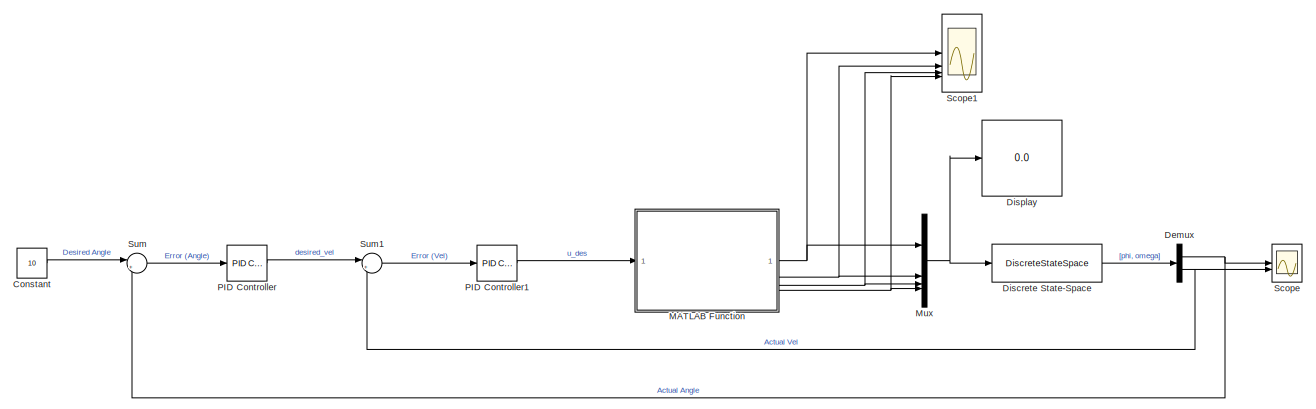
[diagram: root canvas - part 1/2, full width, top band]
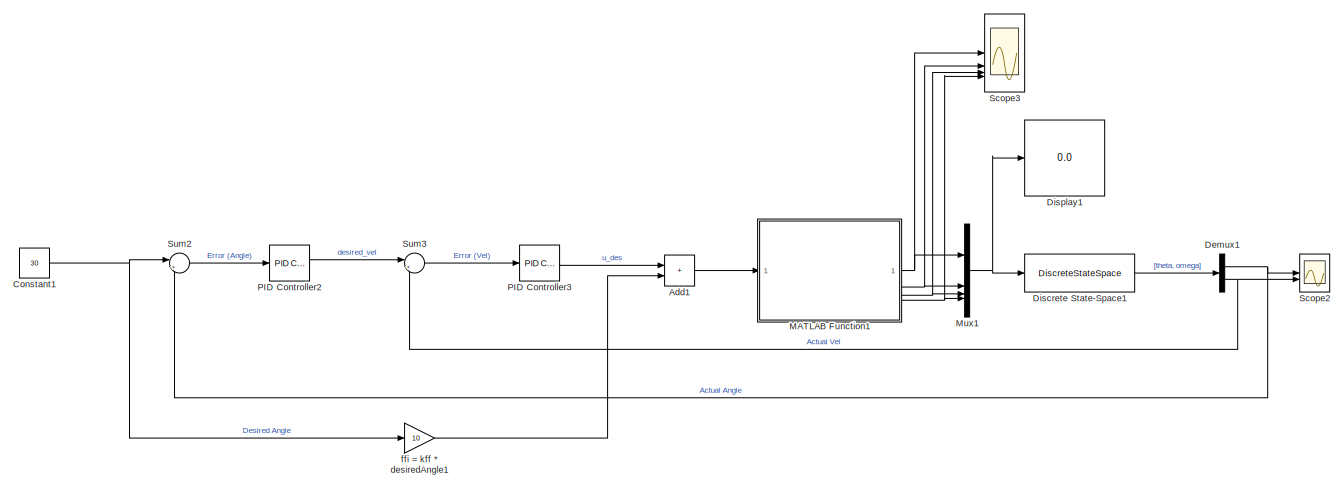
[diagram: root canvas - part 2/2, full width, bottom band]
MODEL slx_4c2794059fb5
KIND model
CONFIG AbsTol = auto
CONFIG EnableMultiTasking = off
CONFIG FixedStep = auto
CONFIG MaxStep = auto
CONFIG MinStep = auto
CONFIG RelTol = 1e-3
CONFIG SampleTimeConstraint = Unconstrained
CONFIG SolverName = VariableStepAuto
CONFIG StartTime = 0.0
CONFIG StopTime = 15
BLOCK [Sum] Add1
  Commented = on
  IconShape = rectangular
BLOCK [Constant] Constant
  Value = 10
BLOCK [Constant] Constant1
  Commented = on
  Value = 30
BLOCK [Demux] Demux
  Outputs = 2
BLOCK [Demux] Demux1
  Commented = on
  Outputs = 2
BLOCK [DiscreteStateSpace] Discrete State-Space
  A = A
  B = B
  C = C
  D = D
  SampleTime = Ts
BLOCK [DiscreteStateSpace] Discrete State-Space1
  A = A
  B = B
  C = C
  Commented = on
  D = D
  SampleTime = Ts
BLOCK [Display] Display
  Decimation = 1
BLOCK [Display] Display1
  Commented = on
  Decimation = 1
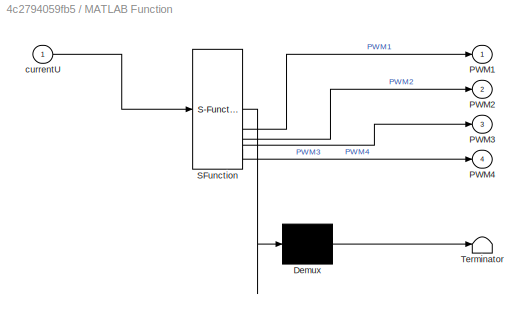
BLOCK [SubSystem] MATLAB Function
  ErrorFcn = Stateflow.Translate.translate
  LibrarySourceBlock = simulink/User-Defined\nFunctions/MATLAB Function
  PermitHierarchicalResolution = ExplicitOnly
  SFBlockType = MATLAB Function
  TreatAsAtomicUnit = on
BLOCK [Demux] MATLAB Function/ Demux 
  Outputs = 1
BLOCK [S-Function] MATLAB Function/ SFunction 
  EnableBusSupport = on
  FunctionName = sf_sfun
  PortCounts = [1 5]
  SFcnIsStateOwnerBlock = off
  SFunctionDeploymentMode = off
  Tag = Stateflow S-Function 2
BLOCK [Terminator] MATLAB Function/ Terminator 
BLOCK [Outport] MATLAB Function/PWM1
BLOCK [Outport] MATLAB Function/PWM2
  Port = 2
BLOCK [Outport] MATLAB Function/PWM3
  Port = 3
BLOCK [Outport] MATLAB Function/PWM4
  Port = 4
BLOCK [Inport] MATLAB Function/currentU
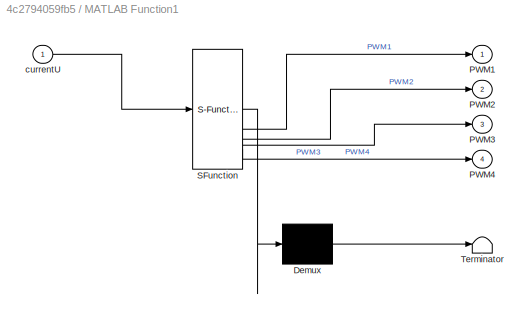
BLOCK [SubSystem] MATLAB Function1
  Commented = on
  ErrorFcn = Stateflow.Translate.translate
  LibrarySourceBlock = simulink/User-Defined\nFunctions/MATLAB Function
  PermitHierarchicalResolution = ExplicitOnly
  SFBlockType = MATLAB Function
  TreatAsAtomicUnit = on
BLOCK [Demux] MATLAB Function1/ Demux 
  Outputs = 1
BLOCK [S-Function] MATLAB Function1/ SFunction 
  EnableBusSupport = on
  FunctionName = sf_sfun
  PortCounts = [1 5]
  SFcnIsStateOwnerBlock = off
  SFunctionDeploymentMode = off
  Tag = Stateflow S-Function 1
BLOCK [Terminator] MATLAB Function1/ Terminator 
BLOCK [Outport] MATLAB Function1/PWM1
BLOCK [Outport] MATLAB Function1/PWM2
  Port = 2
BLOCK [Outport] MATLAB Function1/PWM3
  Port = 3
BLOCK [Outport] MATLAB Function1/PWM4
  Port = 4
BLOCK [Inport] MATLAB Function1/currentU
BLOCK [Mux] Mux
  DisplayOption = bar
BLOCK [Mux] Mux1
  Commented = on
  DisplayOption = bar
BLOCK [Reference] PID Controller  REF=slpidlib/PID Controller
  LibrarySourceBlock = simulink/Continuous/PID Controller
  SourceBlock = slpidlib/PID Controller
  SourceType = PID 1dof
BLOCK [Reference] PID Controller1  REF=slpidlib/PID Controller
  LibrarySourceBlock = simulink/Continuous/PID Controller
  SourceBlock = slpidlib/PID Controller
  SourceType = PID 1dof
BLOCK [Reference] PID Controller2  REF=slpidlib/PID Controller
  Commented = on
  LibrarySourceBlock = simulink/Continuous/PID Controller
  SourceBlock = slpidlib/PID Controller
  SourceType = PID 1dof
BLOCK [Reference] PID Controller3  REF=slpidlib/PID Controller
  Commented = on
  LibrarySourceBlock = simulink/Continuous/PID Controller
  SourceBlock = slpidlib/PID Controller
  SourceType = PID 1dof
BLOCK [Scope] Scope
  Floating = off
  NumInputPorts = 2
  ScopeSpecificationString = Simulink.scopes.TimeScopeBlockCfg('CurrentConfiguration', extmgr.ConfigurationSet(extmgr.Configuration('Core','General UI',true,'FigureColor',[1 1 1]),extmgr.Configuration('Core','Source UI',true),extmgr.Configuration('Sources','WiredSimulink',true),extmgr.Configuration('Visuals','Time Domain',true,'SerializedDisplays',{struct('MinYLimReal','-1.22903','MaxYLimReal','11.06124','YLabelReal','','MinY...<+2227ch>
BLOCK [Scope] Scope1
  Floating = off
  NumInputPorts = 4
  ScopeSpecificationString = Simulink.scopes.TimeScopeBlockCfg('CurrentConfiguration', extmgr.ConfigurationSet(extmgr.Configuration('Core','General UI',true),extmgr.Configuration('Core','Source UI',true),extmgr.Configuration('Sources','WiredSimulink',true,'DataLoggingVariableName','ScopeData1'),extmgr.Configuration('Visuals','Time Domain',true,'SerializedDisplays',{struct('MinYLimReal','149.11331','MaxYLimReal','157.98019','Y...<+3436ch>
BLOCK [Scope] Scope2
  Commented = on
  Floating = off
  NumInputPorts = 2
  ScopeSpecificationString = Simulink.scopes.TimeScopeBlockCfg('CurrentConfiguration', extmgr.ConfigurationSet(extmgr.Configuration('Core','General UI',true),extmgr.Configuration('Core','Source UI',true),extmgr.Configuration('Sources','WiredSimulink',true,'DataLoggingVariableName','ScopeData1'),extmgr.Configuration('Visuals','Time Domain',true,'SerializedDisplays',{struct('MinYLimReal','-3.75978','MaxYLimReal','33.732','YLabe...<+2067ch>
BLOCK [Scope] Scope3
  Commented = on
  Floating = off
  NumInputPorts = 4
  ScopeSpecificationString = Simulink.scopes.TimeScopeBlockCfg('CurrentConfiguration', extmgr.ConfigurationSet(extmgr.Configuration('Core','General UI',true),extmgr.Configuration('Core','Source UI',true),extmgr.Configuration('Sources','WiredSimulink',true,'DataLoggingVariableName','ScopeData2'),extmgr.Configuration('Visuals','Time Domain',true,'SerializedDisplays',{struct('MinYLimReal','-28.88384','MaxYLimReal','259.95452','Y...<+3470ch>
BLOCK [Sum] Sum
  Inputs = |+-
  NameLocation = top
BLOCK [Sum] Sum1
  Inputs = |+-
BLOCK [Sum] Sum2
  Commented = on
  Inputs = |+-
  NameLocation = top
BLOCK [Sum] Sum3
  Commented = on
  Inputs = |+-
BLOCK [Gain] ffi = kff * desiredAngle1
  Commented = on
  Gain = 10
LINE Add1:1 -> MATLAB Function1:1
NET Constant1:1 -> Sum2:1, ffi = kff * desiredAngle1:1
LINE Constant:1 -> Sum:1
NET Demux1:1 -> Scope2:1, Sum2:2
NET Demux1:2 -> Scope2:2, Sum3:2
NET Demux:1 -> Scope:1, Sum:2
NET Demux:2 -> Scope:2, Sum1:2
LINE Discrete State-Space1:1 -> Demux1:1
LINE Discrete State-Space:1 -> Demux:1
NET MATLAB Function1:1 -> Mux1:1, Scope3:1
NET MATLAB Function1:2 -> Mux1:2, Scope3:2
NET MATLAB Function1:3 -> Mux1:3, Scope3:3
NET MATLAB Function1:4 -> Mux1:4, Scope3:4
NET MATLAB Function:1 -> Mux:1, Scope1:1
NET MATLAB Function:2 -> Mux:2, Scope1:2
NET MATLAB Function:3 -> Mux:3, Scope1:3
NET MATLAB Function:4 -> Mux:4, Scope1:4
NET Mux1:1 -> Discrete State-Space1:1, Display1:1
NET Mux:1 -> Discrete State-Space:1, Display:1
LINE PID Controller1:1 -> MATLAB Function:1
LINE PID Controller2:1 -> Sum3:1
LINE PID Controller3:1 -> Add1:1
LINE PID Controller:1 -> Sum1:1
LINE Sum1:1 -> PID Controller1:1
LINE Sum2:1 -> PID Controller2:1
LINE Sum3:1 -> PID Controller3:1
LINE Sum:1 -> PID Controller:1
LINE ffi = kff * desiredAngle1:1 -> Add1:2
note: NET lines group one-source signal fan-out (src -> all destinations, sorted); 1:1 wires keep LINE
CHART MATLAB Function1 states=1 transitions=1
  STATE_LABEL 'eML_blk_kernel()'
  STATE_LABEL 'SCRIPT:\nfunction [PWM1, PWM2, PWM3, PWM4] = torqueToPWM(currentU)\n% torqueToPWM maps the control torque output (currentU) from the velocity PID\n% to individual motor PWM commands for an H-frame quadcopter.\n%\n% Inputs:\n%   currentU    - Control torque command from the PID for velocity\n%   baselinePWM - Baseline PWM value (neutral thrust/hover setting)\n%   pwmMin      - Minimum allowable PWM value\n%...<+1060ch>'
CHART MATLAB Function states=1 transitions=1
  STATE_LABEL 'eML_blk_kernel()'
  STATE_LABEL 'SCRIPT:\nfunction [PWM1, PWM2, PWM3, PWM4] = torqueToPWM(currentU)\n% torqueToPWM maps the control torque output (currentU) from the velocity PID\n% to individual motor PWM commands for an H-frame quadcopter.\n%\n% Inputs:\n%   currentU    - Control torque command from the PID for velocity\n%   baselinePWM - Baseline PWM value (neutral thrust/hover setting)\n%   pwmMin      - Minimum allowable PWM value\n%...<+1062ch>'
CHART  states=0 transitions=0
CHART  states=0 transitions=0
